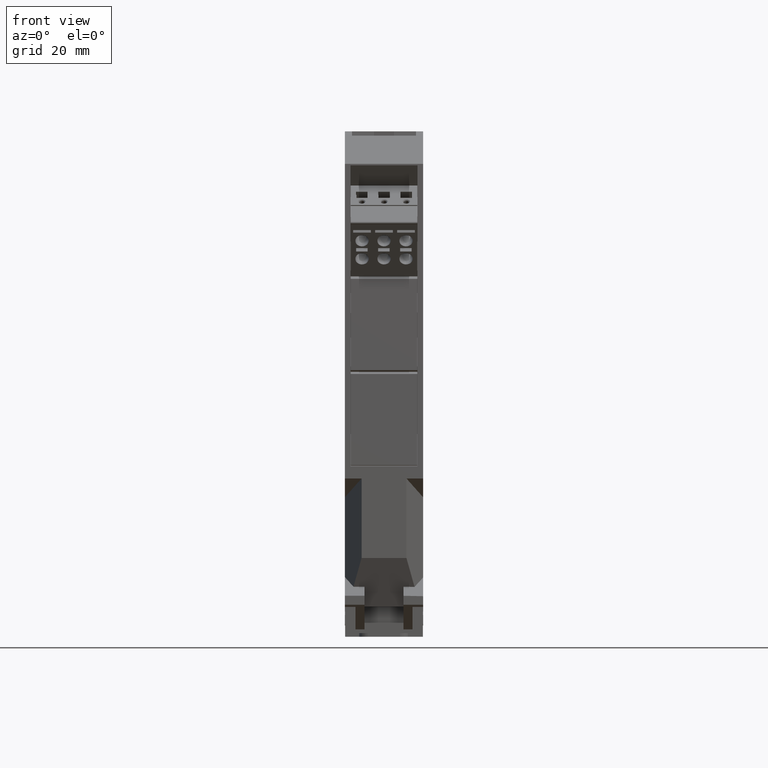
[diagram: clean part render]
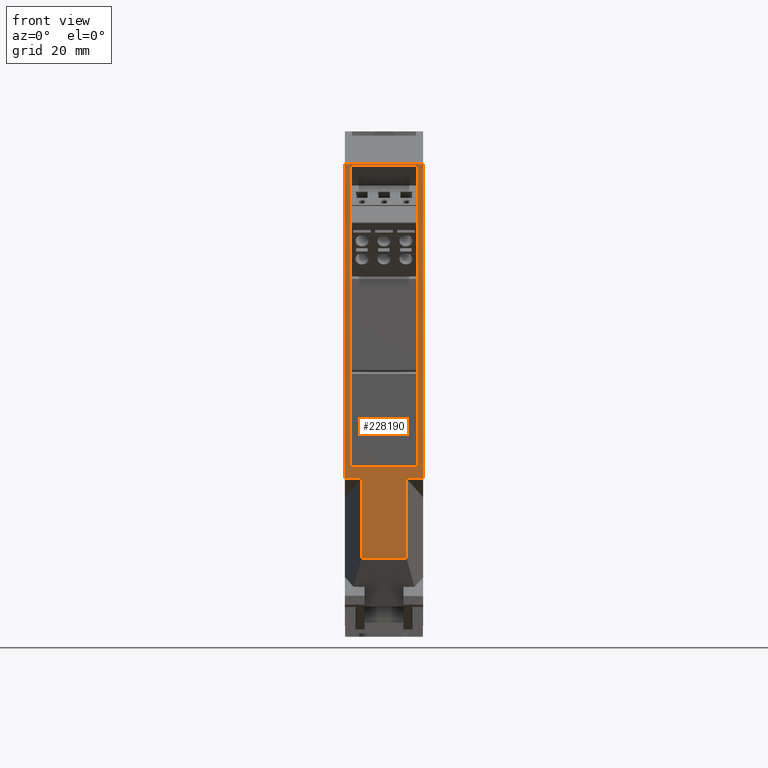
[diagram: same view with one face highlighted and labeled with its STEP entity id]
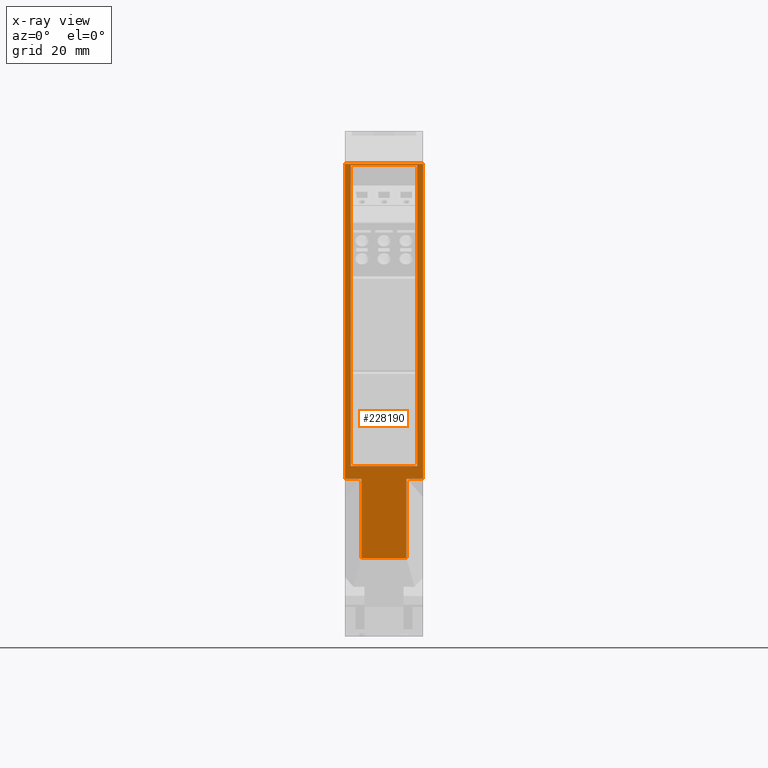
[diagram: x-ray of the same camera — body ghosted, the highlighted face saturated]
A machine part, front view. The second image highlights one B-rep face of the part: STEP entity #228190.
The next image is the same camera in x-ray: the body ghosted, the highlighted face saturated — about 0% of this face is hidden behind the body in this view.
In plain terms, the highlighted planar face has unit normal (0, 1, -0).
Its self-contained STEP definition (entity closure, byte-faithful):
#190880=CARTESIAN_POINT('',(-5.00000077734408,6.86434783140024,
106.311694196686));
#190890=VERTEX_POINT('',#190880);
#190920=CARTESIAN_POINT('',(-5.00000077734408,6.86434783115438,
-24.1499999999707));
#190930=DIRECTION('',(2.28384227807285E-18,1.88477583894362E-12,1.));
#190940=VECTOR('',#190930,1.);
#190950=LINE('',#190920,#190940);
#190960=CARTESIAN_POINT('',(-5.00000077734408,6.86434783126683,
35.5500000000319));
#190970=VERTEX_POINT('',#190960);
#190980=EDGE_CURVE('',#190970,#190890,#190950,.T.);
#194820=CARTESIAN_POINT('',(12.5999992226559,6.86434783126687,
35.5500000000319));
#194830=VERTEX_POINT('',#194820);
#194860=CARTESIAN_POINT('',(12.5999992226559,6.86434783111366,
-45.7499999999707));
#194870=DIRECTION('',(-2.28384227807285E-18,-1.88477583894362E-12,-1.));
#194880=VECTOR('',#194870,1.);
#194890=LINE('',#194860,#194880);
#194900=CARTESIAN_POINT('',(12.5999992226559,6.86434783140024,
106.311694196686));
#194910=VERTEX_POINT('',#194900);
#194920=EDGE_CURVE('',#194910,#194830,#194890,.T.);
#222140=CARTESIAN_POINT('',(3.79999922312159,6.8643478312669,
35.5500000000319));
#222150=DIRECTION('',(1.,-2.24748522192808E-16,-2.28384227764928E-18));
#222160=VECTOR('',#222150,1.);
#222170=LINE('',#222140,#222160);
#222180=CARTESIAN_POINT('',(-1.24722402761396,6.86434783126685,
35.5500000000319));
#222190=VERTEX_POINT('',#222180);
#222200=EDGE_CURVE('',#190970,#222190,#222170,.T.);
#222380=CARTESIAN_POINT('',(8.84722247302389,6.86434783126687,
35.5500000000319));
#222390=VERTEX_POINT('',#222380);
#222400=EDGE_CURVE('',#222390,#194830,#222170,.T.);
#222650=CARTESIAN_POINT('',(-1.24722402761397,6.86434783111365,
-45.7499999999707));
#222660=DIRECTION('',(-2.28384227652094E-18,-1.88477583894362E-12,-1.));
#222670=VECTOR('',#222660,1.);
#222680=LINE('',#222650,#222670);
#222690=CARTESIAN_POINT('',(-1.24722402761397,6.86434783123313,
17.6500000006785));
#222700=VERTEX_POINT('',#222690);
#222710=EDGE_CURVE('',#222190,#222700,#222680,.T.);
#223390=CARTESIAN_POINT('',(3.79999922312159,6.86434783140027,
106.311694196686));
#223400=DIRECTION('',(1.,-2.24748522192808E-16,-2.28384227764925E-18));
#223410=VECTOR('',#223400,1.);
#223420=LINE('',#223390,#223410);
#223430=EDGE_CURVE('',#190890,#194910,#223420,.T.);
#227250=CARTESIAN_POINT('',(8.84722247302389,6.86434783123313,
17.6500000006785));
#227260=VERTEX_POINT('',#227250);
#227290=CARTESIAN_POINT('',(8.8472224730239,6.86434783111365,
-45.7499999999707));
#227300=DIRECTION('',(2.28384227778787E-18,1.88477583894362E-12,1.));
#227310=VECTOR('',#227300,1.);
#227320=LINE('',#227290,#227310);
#227330=EDGE_CURVE('',#227260,#222390,#227320,.T.);
#227650=CARTESIAN_POINT('',(-5.00000077734408,6.86434783121711,
9.15000000003182));
#227660=DIRECTION('',(2.24748522192804E-16,1.,-1.88477583894362E-12));
#227670=DIRECTION('',(-1.,2.24748522192808E-16,2.28384227764925E-18));
#227680=AXIS2_PLACEMENT_3D('',#227650,#227660,#227670);
#227690=PLANE('',#227680);
#227700=CARTESIAN_POINT('',(3.79999922312159,6.86434783127201,
38.2813867019946));
#227710=DIRECTION('',(-1.,2.2474852219308E-16,1.46682823156657E-16));
#227720=VECTOR('',#227710,1.);
#227730=LINE('',#227700,#227720);
#227740=CARTESIAN_POINT('',(11.3499992229375,6.86434783127203,
38.2813867019946));
#227750=VERTEX_POINT('',#227740);
#227760=CARTESIAN_POINT('',(-3.75000077762564,6.86434783127203,
38.2813867019946));
#227770=VERTEX_POINT('',#227760);
#227780=EDGE_CURVE('',#227750,#227770,#227730,.T.);
#227790=ORIENTED_EDGE('',*,*,#227780,.T.);
#227800=CARTESIAN_POINT('',(11.3499992229375,6.86434783111363,
-45.7499999999707));
#227810=DIRECTION('',(-2.28384227807285E-18,-1.88477583894362E-12,-1.));
#227820=VECTOR('',#227810,1.);
#227830=LINE('',#227800,#227820);
#227840=CARTESIAN_POINT('',(11.3499992229375,6.86434783139954,
105.981423189103));
#227850=VERTEX_POINT('',#227840);
#227860=EDGE_CURVE('',#227850,#227750,#227830,.T.);
#227870=ORIENTED_EDGE('',*,*,#227860,.T.);
#227880=CARTESIAN_POINT('',(3.79999922312159,6.86434783139961,
105.981423189103));
#227890=DIRECTION('',(1.,-2.24748522192797E-16,3.51680870686607E-18));
#227900=VECTOR('',#227890,1.);
#227910=LINE('',#227880,#227900);
#227920=CARTESIAN_POINT('',(-3.75000077762564,6.86434783139954,
105.981423189103));
#227930=VERTEX_POINT('',#227920);
#227940=EDGE_CURVE('',#227930,#227850,#227910,.T.);
#227950=ORIENTED_EDGE('',*,*,#227940,.T.);
#227960=CARTESIAN_POINT('',(-3.75000077762564,6.86434783111363,
-45.7499999999707));
#227970=DIRECTION('',(-2.28384227807285E-18,-1.88477583894362E-12,-1.));
#227980=VECTOR('',#227970,1.);
#227990=LINE('',#227960,#227980);
#228000=EDGE_CURVE('',#227930,#227770,#227990,.T.);
#228010=ORIENTED_EDGE('',*,*,#228000,.F.);
#228020=EDGE_LOOP('',(#228010,#227950,#227870,#227790));
#228030=FACE_BOUND('',#228020,.T.);
#228040=ORIENTED_EDGE('',*,*,#222710,.T.);
#228050=ORIENTED_EDGE('',*,*,#222200,.T.);
#228060=ORIENTED_EDGE('',*,*,#190980,.F.);
#228070=ORIENTED_EDGE('',*,*,#223430,.F.);
#228080=ORIENTED_EDGE('',*,*,#194920,.F.);
#228090=ORIENTED_EDGE('',*,*,#222400,.T.);
#228100=ORIENTED_EDGE('',*,*,#227330,.T.);
#228110=CARTESIAN_POINT('',(3.79999922312159,6.86434783123313,
17.6500000006785));
#228120=DIRECTION('',(-1.,2.24748522191948E-16,-4.53862224102895E-16));
#228130=VECTOR('',#228120,1.);
#228140=LINE('',#228110,#228130);
#228150=EDGE_CURVE('',#227260,#222700,#228140,.T.);
#228160=ORIENTED_EDGE('',*,*,#228150,.F.);
#228170=EDGE_LOOP('',(#228160,#228100,#228090,#228080,#228070,#228060,
#228050,#228040));
#228180=FACE_OUTER_BOUND('',#228170,.T.);
#228190=ADVANCED_FACE('',(#228030,#228180),#227690,.F.);